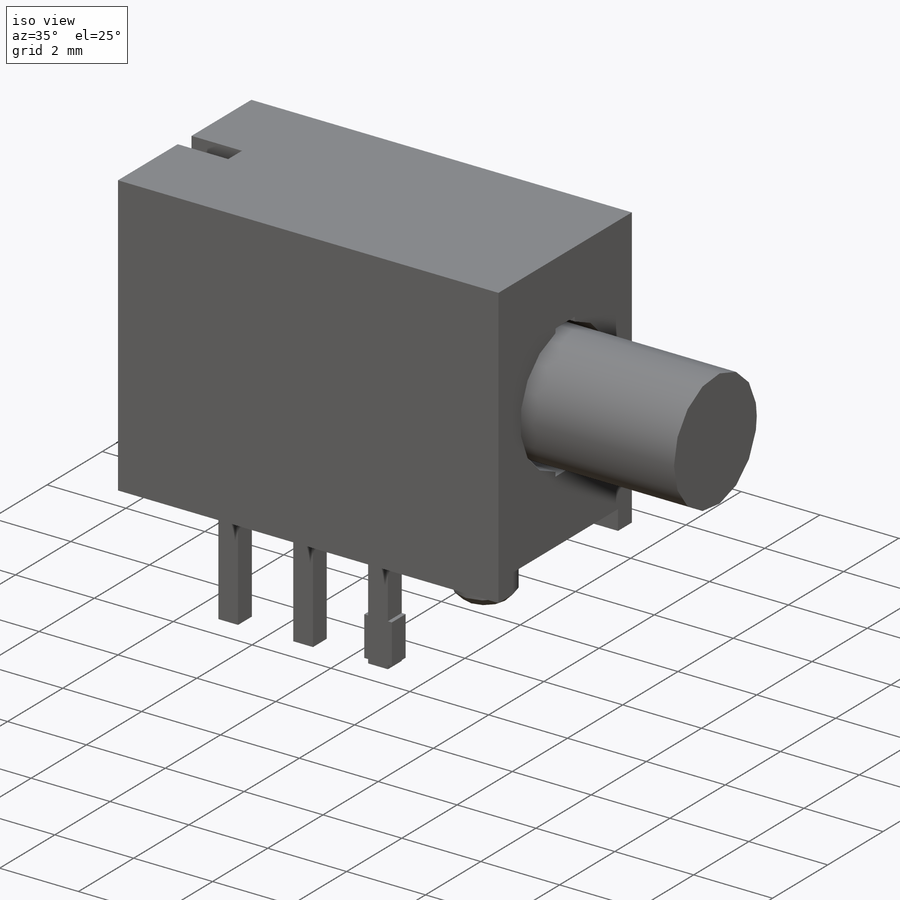
[diagram: iso view]
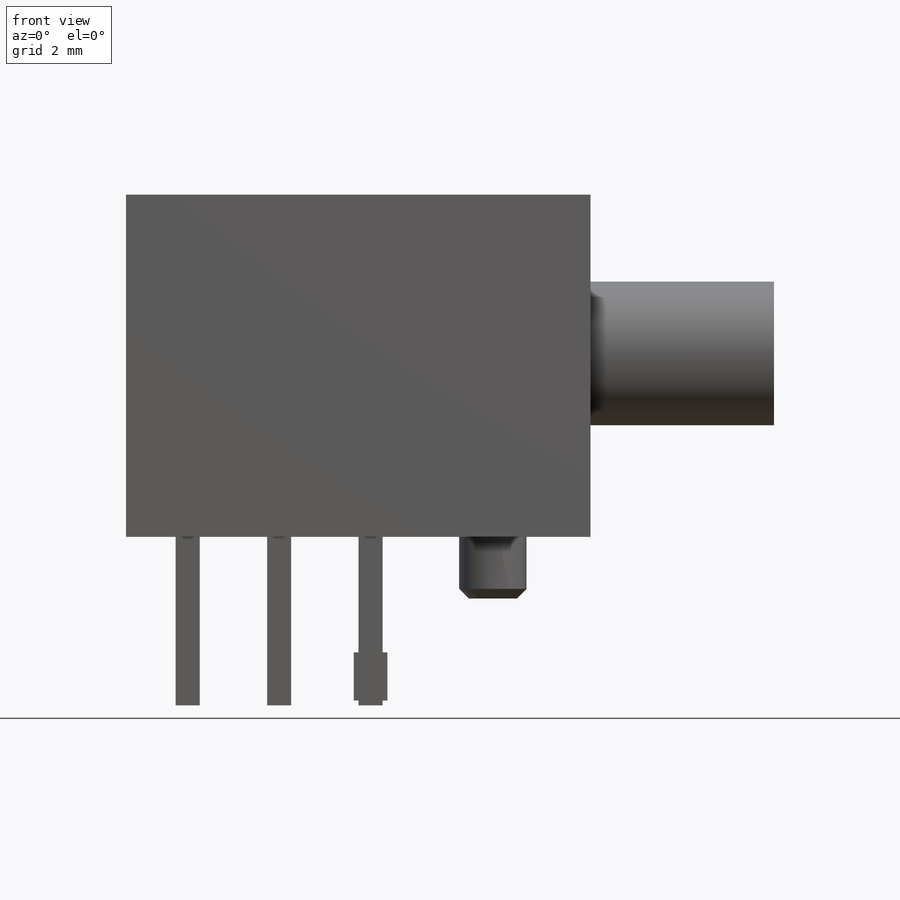
[diagram: front view]
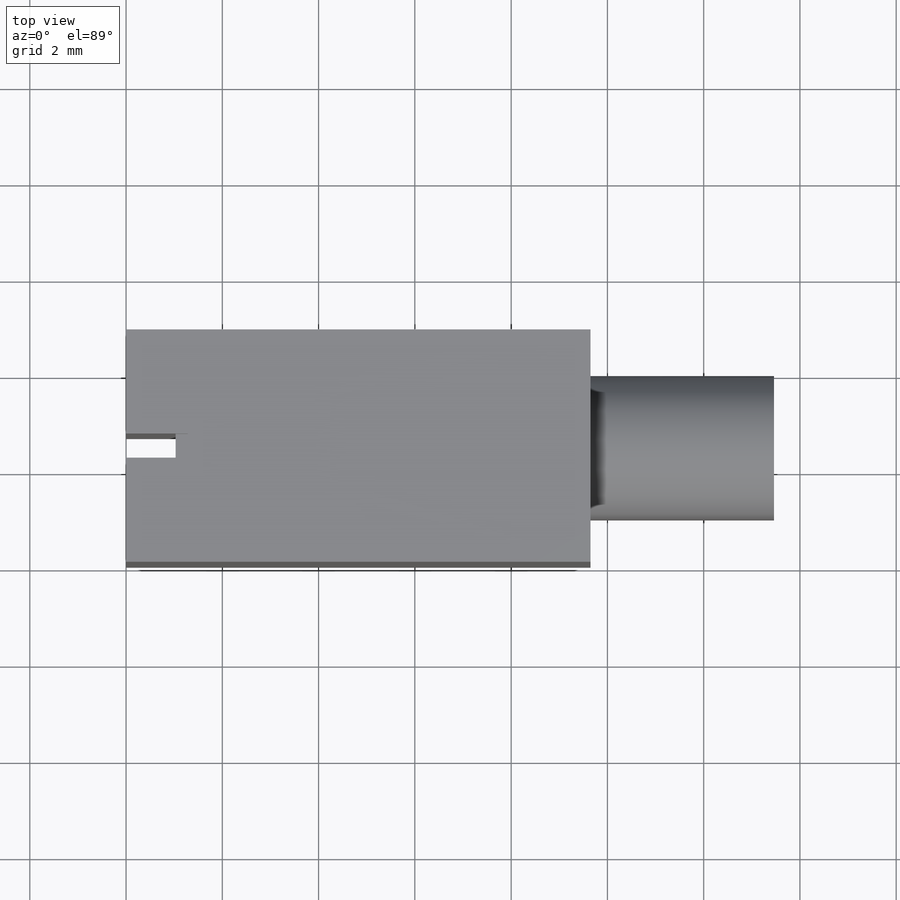
[diagram: top view]
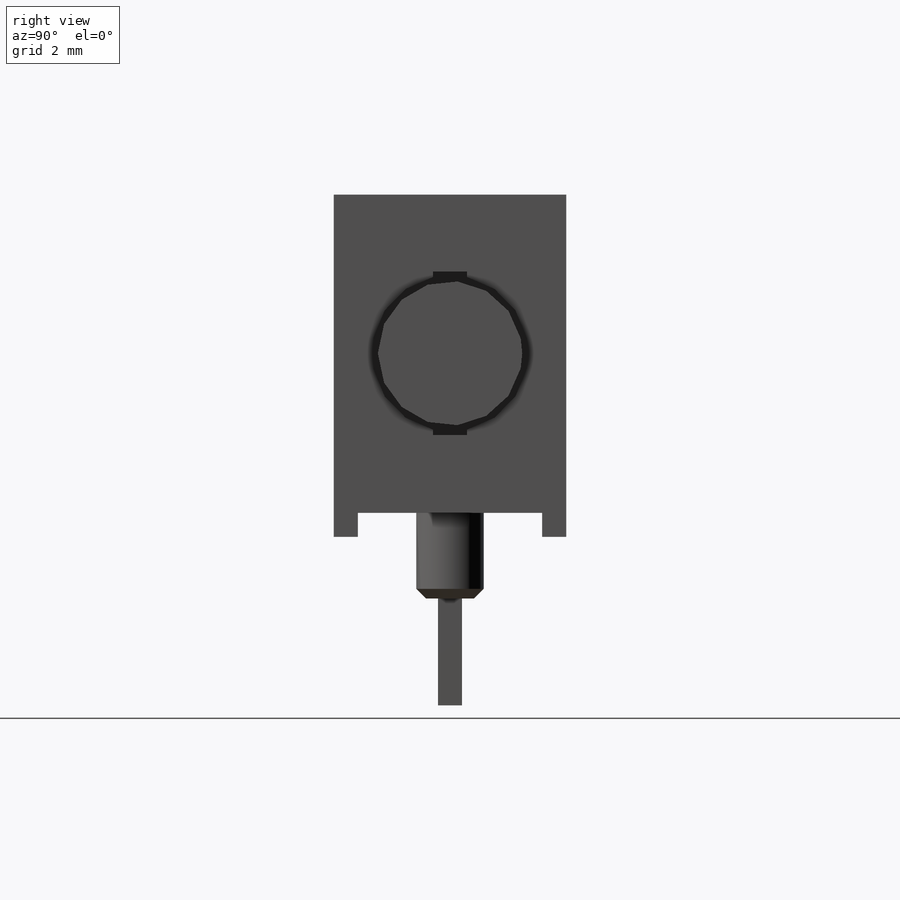
[diagram: right view]
SOLIDWORKS PART (.sldprt)
format: sldprt  version: not decoded by parser v0  size: 937,472 bytes
history: native  units: mm
features: sketch x14, cut_extrude x9, extrude x5, material x1, chamfer x1 (+12 scaffold rows collapsed)
feature tree (42):
  scaffold x12  (default folders/planes/origin — collapsed)
  material  "Material <not specified>"
  sketch  "Sketch1"  dims[D1=7.11mm D2=9.65mm]
  extrude  "Extrude1"  Depth=4.83mm
  sketch  "Sketch3"  dims[c1.D5=3.25mm c1.D6=3.0mm c1.D10=3.0mm c1.D1=0.5mm c1.D2=0.5mm c1.D3=0.5mm c1.D4=3.81mm c1.D7=~0.813433mm c2.D7=90.0deg c3.D7=0.7mm c3.D8=1.7mm c3.D9=0.7mm c3.D10=0.7mm c3.D11=~0.11314mm]
  cut_extrude  "Cut-Extrude1"  [1 undecoded]
  extrude  "Extrude2"  [1 undecoded]
  sketch  "Sketch3<3>"  dims[D1=3.81mm]
  cut_extrude  "Cut-Extrude2"  [1 undecoded]
  sketch  "Sketch3<6>"  dims[D1=2.3mm]
  cut_extrude  "Cut-Extrude3"  [1 undecoded]
  sketch  "Sketch3<7>"  dims[D1=2.3mm]
  sketch  "Sketch4"  dims[D7=1.4mm D1=1.9mm D2=0.5mm D3=0.5mm D4=1.9mm D5=4.57mm D6=2.03mm]
  extrude  "Extrude3"  Depth=4mm
  sketch  "Sketch5"  dims[D1=0.7mm D2=0.1mm D3=1.0mm]
  extrude  "Extrude4"  [1 undecoded]
  extrude  "Extrude5"  [1 undecoded]
  sketch  "Sketch4<3>"  dims[D1=1.78mm]
  chamfer  "Chamfer1"  Distance=0.2mm Angle=45deg
  cut_extrude  "Cut-Extrude4"  [1 undecoded]
  sketch  "Sketch3<8>"  dims[D1=2.3mm]
  sketch  "Sketch7"
  cut_extrude  "Cut-Extrude5"  [1 undecoded]
  cut_extrude  "Cut-Extrude6"  [1 undecoded]
  sketch  "Sketch7<5>"  dims[D1=2.5mm]
  sketch  "Sketch8"  dims[D1=0.25mm]
  cut_extrude  "Cut-Extrude7"  [1 undecoded]
  cut_extrude  "Cut-Extrude8"  [1 undecoded]
  sketch  "Sketch8<5>"  dims[D1=0.25mm]
  sketch  "Sketch9"
  cut_extrude  "Cut-Extrude9"  Depth=0.01mm
decode coverage: 16 of 29 modeling features carry decoded parameters
note: ~ marks probable driven/reference dimensions
note: 11 parameter values undecoded
summary: no parameter record found for 11 features
note: suppression state not decoded; provenance and decode notes live in map.json
